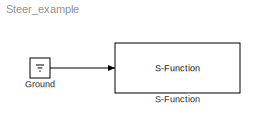
MODEL Steer_example
KIND model
BLOCK [Ground] Ground
  SID = 1
BLOCK [S-Function] S-Function
  EnableBusSupport = off
  FunctionName = vs_sf_steer_control
  Parameters = 'simfile.sim'
  Ports = [1]
  SID = 2
LINE Ground:1 -> S-Function:1
